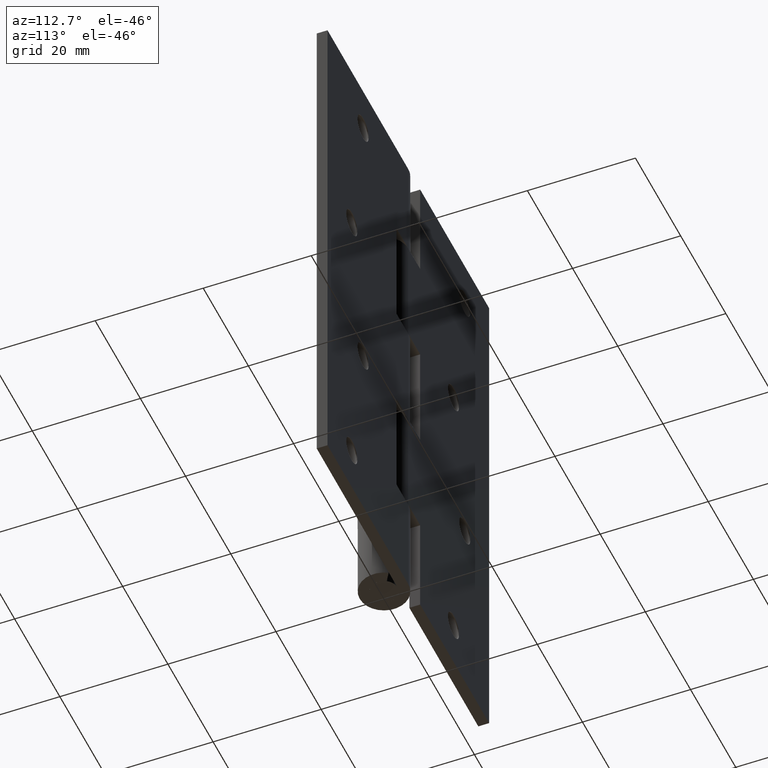
[diagram: clean part render]
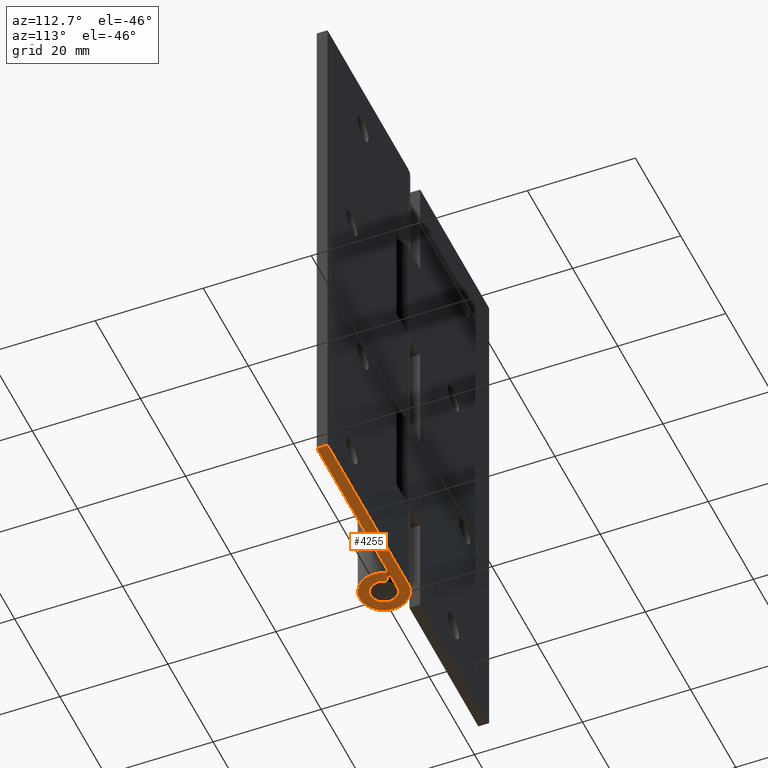
[diagram: same view with one face highlighted and labeled with its STEP entity id]
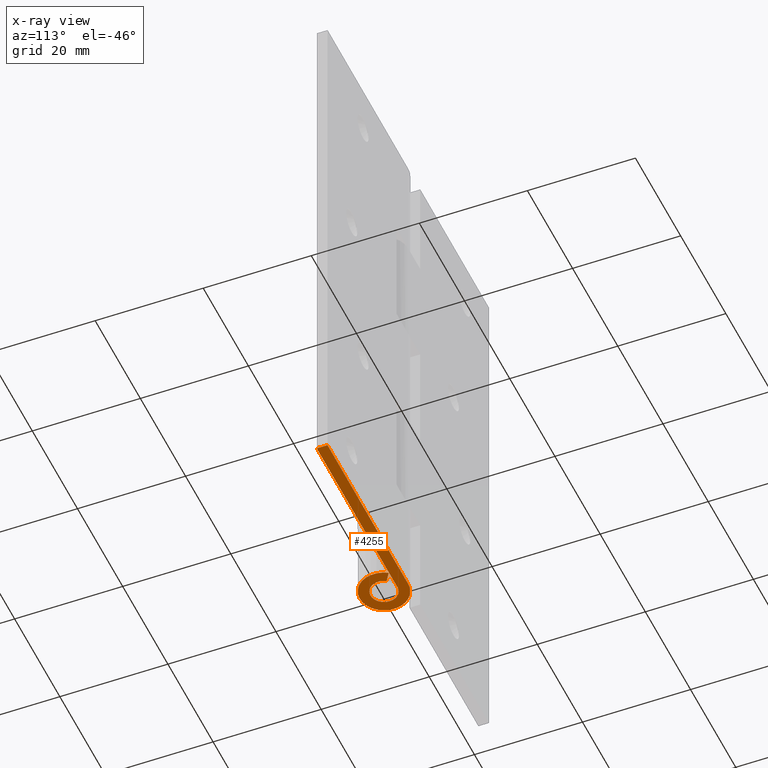
[diagram: x-ray of the same camera — body ghosted, the highlighted face saturated]
A machine part, auxiliary view. The second image highlights one B-rep face of the part: STEP entity #4255.
The next image is the same camera in x-ray: the body ghosted, the highlighted face saturated — about 0% of this face is hidden behind the body in this view.
In plain terms, the highlighted face is a freeform B-spline surface patch.
Its self-contained STEP definition (entity closure, byte-faithful):
#4178=CARTESIAN_POINT('',(-6.509910468555789,-4.947240005323052,0.0));
#4179=CARTESIAN_POINT('',(37.760452673167329,-4.947240005323052,0.0));
#4180=CARTESIAN_POINT('',(-6.509910468555789,4.949440329750106,0.0));
#4181=CARTESIAN_POINT('',(37.760452673167329,4.949440329750106,0.0));
#4182=B_SPLINE_SURFACE_WITH_KNOTS('',1,1,((#4178,#4180),(#4179,#4181)),.UNSPECIFIED.,.F.,.F.,.U.,(2,2),(2,2),(0.0,44.270363141723116),(0.0,9.896680335073157),.UNSPECIFIED.);
#4183=CARTESIAN_POINT('',(3.774586070021450,2.450000000000000,0.0));
#4184=VERTEX_POINT('',#4183);
#4185=CARTESIAN_POINT('',(0.0,4.500000000000000,0.0));
#4186=VERTEX_POINT('',#4185);
#4187=CARTESIAN_POINT('',(3.774586070021452,2.450000000000001,0.0));
#4188=CARTESIAN_POINT('',(5.680028716683057,-0.485615212781099,0.0));
#4189=CARTESIAN_POINT('',(3.303919729592088,-3.055178296010257,0.0));
#4190=CARTESIAN_POINT('',(0.927810742501120,-5.624741379239415,0.0));
#4191=CARTESIAN_POINT('',(-2.147673159491448,-3.954427897939223,0.0));
#4192=CARTESIAN_POINT('',(-5.223157061484022,-2.284114416639028,0.0));
#4193=CARTESIAN_POINT('',(-4.361474838900626,1.107942791680489,0.0));
#4194=CARTESIAN_POINT('',(-3.499792616317231,4.499999999999999,0.0));
#4195=CARTESIAN_POINT('',(0.0,4.500000000000000,0.0));
#4203=(BOUNDED_CURVE()B_SPLINE_CURVE(2,(#4187,#4188,#4189,#4190,#4191,#4192,#4193,#4194,#4195),.UNSPECIFIED.,.F.,.U.)B_SPLINE_CURVE_WITH_KNOTS((3,2,2,2,3),(0.0,0.250000000000000,0.500000000000000,0.750000000000000,1.0),.UNSPECIFIED.)CURVE()GEOMETRIC_REPRESENTATION_ITEM()RATIONAL_B_SPLINE_CURVE((1.0,0.789369846542903,1.0,0.789369846542903,1.0,0.789369846542903,1.0,0.789369846542903,1.0))REPRESENTATION_ITEM(''));
#4204=EDGE_CURVE('',#4184,#4186,#4203,.T.);
#4205=ORIENTED_EDGE('',*,*,#4204,.T.);
#4206=CARTESIAN_POINT('',(35.749991999999999,4.500000000000000,0.0));
#4207=VERTEX_POINT('',#4206);
#4208=CARTESIAN_POINT('',(0.0,4.500000000000000,0.0));
#4209=CARTESIAN_POINT('',(35.749991999999999,4.500000000000000,0.0));
#4210=QUASI_UNIFORM_CURVE('',1,(#4208,#4209),.UNSPECIFIED.,.F.,.U.);
#4211=EDGE_CURVE('',#4186,#4207,#4210,.T.);
#4212=ORIENTED_EDGE('',*,*,#4211,.T.);
#4213=CARTESIAN_POINT('',(35.749991999999999,2.500000000000000,0.0));
#4214=VERTEX_POINT('',#4213);
#4215=CARTESIAN_POINT('',(35.749991999999999,4.500000000000000,0.0));
#4216=CARTESIAN_POINT('',(35.749991999999999,2.500000000000000,0.0));
#4217=QUASI_UNIFORM_CURVE('',1,(#4215,#4216),.UNSPECIFIED.,.F.,.U.);
#4218=EDGE_CURVE('',#4207,#4214,#4217,.T.);
#4219=ORIENTED_EDGE('',*,*,#4218,.T.);
#4220=CARTESIAN_POINT('',(0.0,2.500000000000000,0.0));
#4221=VERTEX_POINT('',#4220);
#4222=CARTESIAN_POINT('',(35.749991999999999,2.500000000000000,0.0));
#4223=CARTESIAN_POINT('',(0.0,2.500000000000000,0.0));
#4224=QUASI_UNIFORM_CURVE('',1,(#4222,#4223),.UNSPECIFIED.,.F.,.U.);
#4225=EDGE_CURVE('',#4214,#4221,#4224,.T.);
#4226=ORIENTED_EDGE('',*,*,#4225,.T.);
#4227=CARTESIAN_POINT('',(2.096992261123030,1.361111111111112,0.0));
#4228=VERTEX_POINT('',#4227);
#4229=CARTESIAN_POINT('',(2.096992261123029,1.361111111111112,0.0));
#4230=CARTESIAN_POINT('',(3.155571509268364,-0.269786229322833,0.0));
#4231=CARTESIAN_POINT('',(1.835510960884494,-1.697321275561254,0.0));
#4232=CARTESIAN_POINT('',(0.515450412500622,-3.124856321799674,0.0));
#4233=CARTESIAN_POINT('',(-1.193151755273027,-2.196904387744013,0.0));
#4234=CARTESIAN_POINT('',(-2.901753923046679,-1.268952453688348,0.0));
#4235=CARTESIAN_POINT('',(-2.423041577167015,0.615523773155827,0.0));
#4236=CARTESIAN_POINT('',(-1.944329231287350,2.500000000000000,0.0));
#4237=CARTESIAN_POINT('',(0.0,2.500000000000000,0.0));
#4245=(BOUNDED_CURVE()B_SPLINE_CURVE(2,(#4229,#4230,#4231,#4232,#4233,#4234,#4235,#4236,#4237),.UNSPECIFIED.,.F.,.U.)B_SPLINE_CURVE_WITH_KNOTS((3,2,2,2,3),(0.0,0.250000000000000,0.500000000000000,0.750000000000000,1.0),.UNSPECIFIED.)CURVE()GEOMETRIC_REPRESENTATION_ITEM()RATIONAL_B_SPLINE_CURVE((1.0,0.789369846542903,1.0,0.789369846542903,1.0,0.789369846542903,1.0,0.789369846542903,1.0))REPRESENTATION_ITEM(''));
#4246=EDGE_CURVE('',#4228,#4221,#4245,.T.);
#4247=ORIENTED_EDGE('',*,*,#4246,.F.);
#4248=CARTESIAN_POINT('',(2.096992261123030,1.361111111111112,0.0));
#4249=CARTESIAN_POINT('',(3.774586070021450,2.450000000000000,0.0));
#4250=QUASI_UNIFORM_CURVE('',1,(#4248,#4249),.UNSPECIFIED.,.F.,.U.);
#4251=EDGE_CURVE('',#4228,#4184,#4250,.T.);
#4252=ORIENTED_EDGE('',*,*,#4251,.T.);
#4253=EDGE_LOOP('',(#4205,#4212,#4219,#4226,#4247,#4252));
#4254=FACE_OUTER_BOUND('',#4253,.T.);
#4255=ADVANCED_FACE('',(#4254),#4182,.F.);